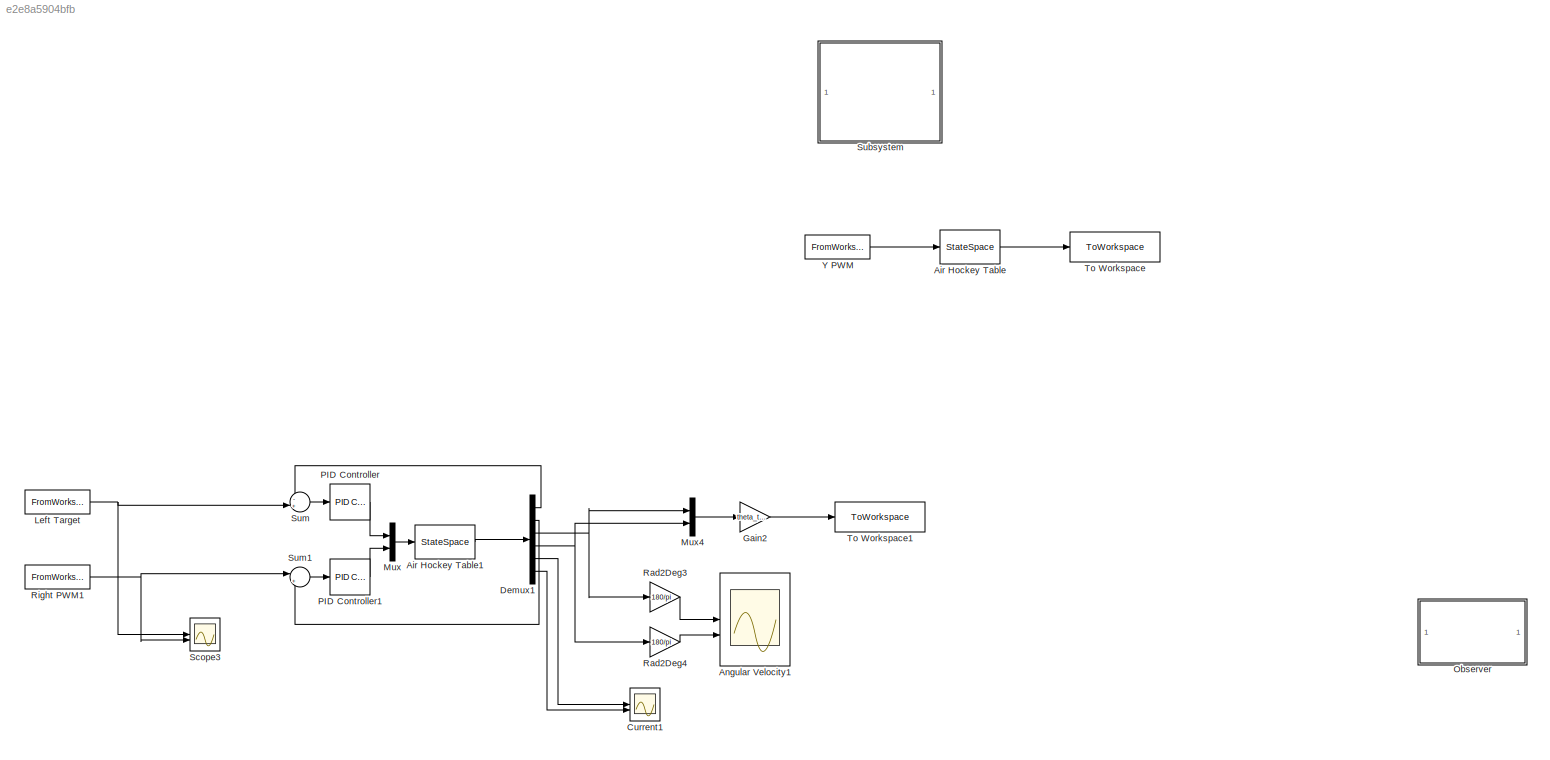
MODEL slx_e2e8a5904bfb
KIND model
CONFIG AbsTol = auto
CONFIG EnableMultiTasking = off
CONFIG FixedStep = auto
CONFIG MaxStep = auto
CONFIG MinStep = auto
CONFIG RelTol = 1e-3
CONFIG SampleTimeConstraint = Unconstrained
CONFIG SolverName = VariableStepAuto
CONFIG StartTime = 0.0
CONFIG StopTime = max(data.Time_ms_)/1000
BLOCK [StateSpace] Air Hockey Table
  A = A
  B = B
  C = C
  D = D
  InitialCondition = [data.Y_Accel_m_s2_(1)/C(1,3);data.Y_Velocity_m_s_(1)/C(1,3);data.y(1)/C(1,3)]
BLOCK [StateSpace] Air Hockey Table1
  A = A
  B = B
  C = [C; zeros(4,2) eye(4)]
  Commented = on
  D = [D; zeros(4,2)]
  InitialCondition = [0;0;0;0;0;0];
BLOCK [Scope] Angular Velocity1
  Commented = on
  Floating = off
  NumInputPorts = 2
  ScopeSpecificationString = Simulink.scopes.TimeScopeBlockCfg('CurrentConfiguration', extmgr.ConfigurationSet(extmgr.Configuration('Core','General UI',true),extmgr.Configuration('Core','Source UI',true),extmgr.Configuration('Sources','WiredSimulink',true,'DataLoggingVariableName','ScopeData3'),extmgr.Configuration('Visuals','Time Domain',true,'SerializedDisplays',{struct('MinYLimReal','-20043.26351','MaxYLimReal','23257.8804...<+1482ch>
BLOCK [Scope] Current1
  Commented = on
  Floating = off
  NumInputPorts = 2
  ScopeSpecificationString = Simulink.scopes.TimeScopeBlockCfg('CurrentConfiguration', extmgr.ConfigurationSet(extmgr.Configuration('Core','General UI',true),extmgr.Configuration('Core','Source UI',true),extmgr.Configuration('Sources','WiredSimulink',true,'DataLoggingVariableName','ScopeData4'),extmgr.Configuration('Visuals','Time Domain',true,'SerializedDisplays',{struct('MinYLimReal','-16079682721679488250104865973485040581...<+2027ch>
BLOCK [Demux] Demux1
  Commented = on
  Outputs = 6
BLOCK [Gain] Gain2
  Commented = on
  Gain = theta_to_xy
  Multiplication = Matrix(K*u)
BLOCK [FromWorkspace] Left Target
  Commented = on
  VariableName = [data.Time_ms_/1000, data.Left_Target_deg_]
BLOCK [Mux] Mux
  Commented = on
  DisplayOption = bar
  Inputs = 2
BLOCK [Mux] Mux4
  Commented = on
  DisplayOption = bar
  Inputs = 2
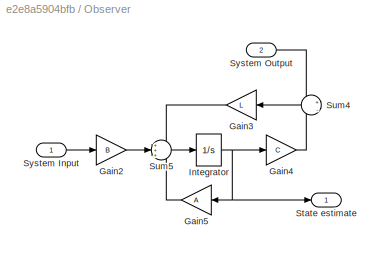
BLOCK [SubSystem] Observer
  Commented = on
  NameLocation = top
BLOCK [Gain] Observer/Gain2
  Gain = B
  Multiplication = Matrix(K*u)
BLOCK [Gain] Observer/Gain3
  Gain = L
  Multiplication = Matrix(K*u)
  NameLocation = top
BLOCK [Gain] Observer/Gain4
  Gain = C
  Multiplication = Matrix(K*u)
BLOCK [Gain] Observer/Gain5
  Gain = A
  Multiplication = Matrix(K*u)
  NameLocation = top
BLOCK [Integrator] Observer/Integrator
BLOCK [Outport] Observer/State estimate
BLOCK [Sum] Observer/Sum4
  Inputs = +|-
  NameLocation = top
BLOCK [Sum] Observer/Sum5
  Inputs = +++
BLOCK [Inport] Observer/System Input
BLOCK [Inport] Observer/System Output
  Port = 2
BLOCK [Reference] PID Controller  REF=slpidlib/PID Controller
  Commented = on
  LibrarySourceBlock = simulink/Continuous/PID Controller
  SourceBlock = slpidlib/PID Controller
  SourceType = PID 1dof
BLOCK [Reference] PID Controller1  REF=slpidlib/PID Controller
  Commented = on
  LibrarySourceBlock = simulink/Continuous/PID Controller
  SourceBlock = slpidlib/PID Controller
  SourceType = PID 1dof
BLOCK [Gain] Rad2Deg3
  Commented = on
  Gain = 180/pi
BLOCK [Gain] Rad2Deg4
  Commented = on
  Gain = 180/pi
BLOCK [FromWorkspace] Right PWM1
  Commented = on
  VariableName = [data.Time_ms_/1000, data.Left_Target_deg_]
BLOCK [Scope] Scope3
  Commented = on
  Floating = off
  NumInputPorts = 2
  ScopeSpecificationString = Simulink.scopes.TimeScopeBlockCfg('CurrentConfiguration', extmgr.ConfigurationSet(extmgr.Configuration('Core','General UI',true),extmgr.Configuration('Core','Source UI',true),extmgr.Configuration('Sources','WiredSimulink',true,'DataLoggingVariableName','ScopeData5'),extmgr.Configuration('Visuals','Time Domain',true,'SerializedDisplays',{struct('MinYLimReal','-179.60181','MaxYLimReal','1616.41625',...<+1494ch>
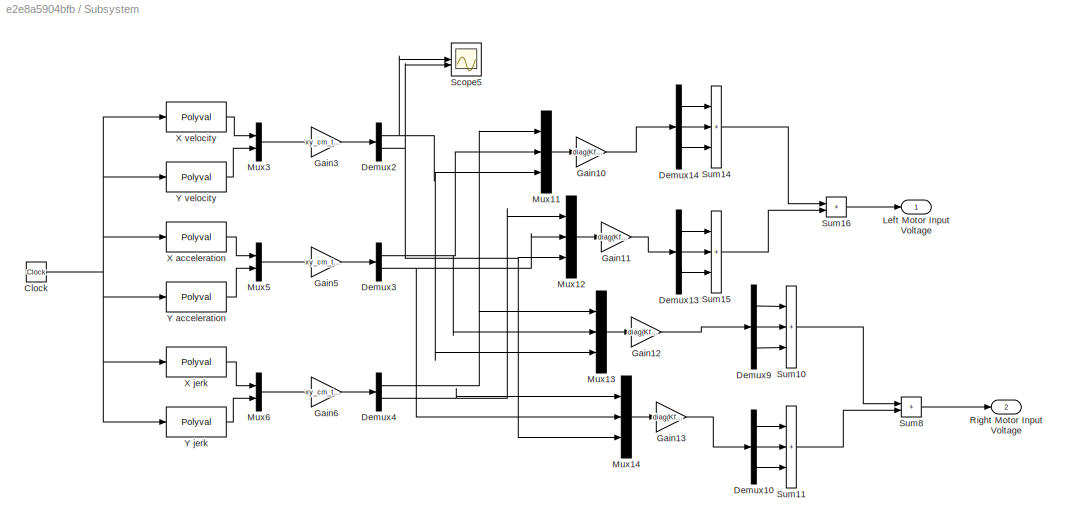
BLOCK [SubSystem] Subsystem
  Commented = on
BLOCK [Clock] Subsystem/Clock
BLOCK [Demux] Subsystem/Demux10
  Outputs = 3
BLOCK [Demux] Subsystem/Demux13
  Outputs = 3
BLOCK [Demux] Subsystem/Demux14
  Outputs = 3
BLOCK [Demux] Subsystem/Demux2
  Outputs = 2
BLOCK [Demux] Subsystem/Demux3
  Outputs = 2
BLOCK [Demux] Subsystem/Demux4
  Outputs = 2
BLOCK [Demux] Subsystem/Demux9
  Outputs = 3
BLOCK [Gain] Subsystem/Gain10
  Gain = diag(Kff{1,1})
  Multiplication = Matrix(K*u)
BLOCK [Gain] Subsystem/Gain11
  Gain = diag(Kff{1,2})
  Multiplication = Matrix(K*u)
BLOCK [Gain] Subsystem/Gain12
  Gain = diag(Kff{2,1})
  Multiplication = Matrix(K*u)
BLOCK [Gain] Subsystem/Gain13
  Gain = diag(Kff{2,2})
  Multiplication = Matrix(K*u)
BLOCK [Gain] Subsystem/Gain3
  Gain = xy_cm_to_theta_rad*100
  Multiplication = Matrix(K*u)
BLOCK [Gain] Subsystem/Gain5
  Gain = xy_cm_to_theta_rad*100
  Multiplication = Matrix(K*u)
BLOCK [Gain] Subsystem/Gain6
  Gain = xy_cm_to_theta_rad*100
  Multiplication = Matrix(K*u)
BLOCK [Outport] Subsystem/Left Motor Input Voltage
BLOCK [Mux] Subsystem/Mux11
  DisplayOption = bar
  Inputs = 3
BLOCK [Mux] Subsystem/Mux12
  DisplayOption = bar
  Inputs = 3
BLOCK [Mux] Subsystem/Mux13
  DisplayOption = bar
  Inputs = 3
BLOCK [Mux] Subsystem/Mux14
  DisplayOption = bar
  Inputs = 3
BLOCK [Mux] Subsystem/Mux3
  DisplayOption = bar
  Inputs = 2
BLOCK [Mux] Subsystem/Mux5
  DisplayOption = bar
  Inputs = 2
BLOCK [Mux] Subsystem/Mux6
  DisplayOption = bar
  Inputs = 2
BLOCK [Outport] Subsystem/Right Motor Input Voltage
  Port = 2
BLOCK [Scope] Subsystem/Scope5
  Floating = off
  NumInputPorts = 2
  ScopeSpecificationString = Simulink.scopes.TimeScopeBlockCfg('CurrentConfiguration', extmgr.ConfigurationSet(extmgr.Configuration('Core','General UI',true),extmgr.Configuration('Core','Source UI',true),extmgr.Configuration('Sources','WiredSimulink',true,'DataLoggingVariableName','ScopeData7'),extmgr.Configuration('Visuals','Time Domain',true,'SerializedDisplays',{struct('MinYLimReal','-2876.74758','MaxYLimReal','451.12578',...<+1434ch>
BLOCK [Sum] Subsystem/Sum10
  IconShape = rectangular
  Inputs = +++
BLOCK [Sum] Subsystem/Sum11
  IconShape = rectangular
  Inputs = +++
BLOCK [Sum] Subsystem/Sum14
  IconShape = rectangular
  Inputs = +++
BLOCK [Sum] Subsystem/Sum15
  IconShape = rectangular
  Inputs = +++
BLOCK [Sum] Subsystem/Sum16
  IconShape = rectangular
BLOCK [Sum] Subsystem/Sum8
  IconShape = rectangular
BLOCK [Polyval] Subsystem/X acceleration
  Coefs = [-795.16*5*4, 867.02*4*3, -336.04*3*2, 48.83*2*1]
BLOCK [Polyval] Subsystem/X jerk
  Coefs = [-795.16*5*4*3, 867.02*4*3*2, -336.04*3*2*1]
BLOCK [Polyval] Subsystem/X velocity
  Coefs = [-795.16*5, 867.02*4, -336.04*3, 48.83*2, 0]
BLOCK [Polyval] Subsystem/Y acceleration
  Coefs = [736.08*5*4, -772.37*4*3, 275.79*3*2, -29.77*2*1]
BLOCK [Polyval] Subsystem/Y jerk
  Coefs = [736.08*5*4*3, -772.37*4*3*2, 275.79*3*2*1]
BLOCK [Polyval] Subsystem/Y velocity
  Coefs = [736.08*5, -772.37*4, 275.79*3, -29.77*2, 0]
BLOCK [Sum] Sum
  Commented = on
  Inputs = -+|
BLOCK [Sum] Sum1
  Commented = on
  Inputs = |+-
BLOCK [ToWorkspace] To Workspace
  FixptAsFi = on
  MaxDataPoints = inf
  SampleTime = -1
  SaveFormat = Timeseries
  VariableName = simout
BLOCK [ToWorkspace] To Workspace1
  Commented = on
  FixptAsFi = on
  MaxDataPoints = inf
  SampleTime = -1
  SaveFormat = Timeseries
  VariableName = simout1
BLOCK [FromWorkspace] Y PWM
  VariableName = [data.Time_ms_/1000, data.Y_PWM*24]
LINE Air Hockey Table1:1 -> Demux1:1
LINE Air Hockey Table:1 -> To Workspace:1
LINE Demux1:1 -> Sum:1
LINE Demux1:2 -> Sum1:2
NET Demux1:3 -> Mux4:1, Rad2Deg3:1
NET Demux1:4 -> Mux4:2, Rad2Deg4:1
LINE Demux1:5 -> Current1:1
LINE Demux1:6 -> Current1:2
LINE Gain2:1 -> To Workspace1:1
NET Left Target:1 -> Scope3:1, Sum:2
LINE Mux4:1 -> Gain2:1
LINE Mux:1 -> Air Hockey Table1:1
LINE Observer/Gain2:1 -> Observer/Sum5:2
LINE Observer/Gain3:1 -> Observer/Sum5:1
LINE Observer/Gain4:1 -> Observer/Sum4:2
LINE Observer/Gain5:1 -> Observer/Sum5:3
NET Observer/Integrator:1 -> Observer/Gain4:1, Observer/Gain5:1, Observer/State estimate:1
LINE Observer/Sum4:1 -> Observer/Gain3:1
LINE Observer/Sum5:1 -> Observer/Integrator:1
LINE Observer/System Input:1 -> Observer/Gain2:1
LINE Observer/System Output:1 -> Observer/Sum4:1
LINE PID Controller1:1 -> Mux:2
LINE PID Controller:1 -> Mux:1
LINE Rad2Deg3:1 -> Angular Velocity1:1
LINE Rad2Deg4:1 -> Angular Velocity1:2
NET Right PWM1:1 -> Scope3:2, Sum1:1
NET Subsystem/Clock:1 -> Subsystem/X acceleration:1, Subsystem/X jerk:1, Subsystem/X velocity:1, Subsystem/Y acceleration:1, Subsystem/Y jerk:1, Subsystem/Y velocity:1
LINE Subsystem/Demux10:1 -> Subsystem/Sum11:1
LINE Subsystem/Demux10:2 -> Subsystem/Sum11:2
LINE Subsystem/Demux10:3 -> Subsystem/Sum11:3
LINE Subsystem/Demux13:1 -> Subsystem/Sum15:1
LINE Subsystem/Demux13:2 -> Subsystem/Sum15:2
LINE Subsystem/Demux13:3 -> Subsystem/Sum15:3
LINE Subsystem/Demux14:1 -> Subsystem/Sum14:1
LINE Subsystem/Demux14:2 -> Subsystem/Sum14:2
LINE Subsystem/Demux14:3 -> Subsystem/Sum14:3
NET Subsystem/Demux2:1 -> Subsystem/Mux11:3, Subsystem/Mux13:3, Subsystem/Scope5:1
NET Subsystem/Demux2:2 -> Subsystem/Mux12:3, Subsystem/Mux14:3, Subsystem/Scope5:2
NET Subsystem/Demux3:1 -> Subsystem/Mux11:2, Subsystem/Mux13:2
NET Subsystem/Demux3:2 -> Subsystem/Mux12:2, Subsystem/Mux14:2
NET Subsystem/Demux4:1 -> Subsystem/Mux11:1, Subsystem/Mux13:1
NET Subsystem/Demux4:2 -> Subsystem/Mux12:1, Subsystem/Mux14:1
LINE Subsystem/Demux9:1 -> Subsystem/Sum10:1
LINE Subsystem/Demux9:2 -> Subsystem/Sum10:2
LINE Subsystem/Demux9:3 -> Subsystem/Sum10:3
LINE Subsystem/Gain10:1 -> Subsystem/Demux14:1
LINE Subsystem/Gain11:1 -> Subsystem/Demux13:1
LINE Subsystem/Gain12:1 -> Subsystem/Demux9:1
LINE Subsystem/Gain13:1 -> Subsystem/Demux10:1
LINE Subsystem/Gain3:1 -> Subsystem/Demux2:1
LINE Subsystem/Gain5:1 -> Subsystem/Demux3:1
LINE Subsystem/Gain6:1 -> Subsystem/Demux4:1
LINE Subsystem/Mux11:1 -> Subsystem/Gain10:1
LINE Subsystem/Mux12:1 -> Subsystem/Gain11:1
LINE Subsystem/Mux13:1 -> Subsystem/Gain12:1
LINE Subsystem/Mux14:1 -> Subsystem/Gain13:1
LINE Subsystem/Mux3:1 -> Subsystem/Gain3:1
LINE Subsystem/Mux5:1 -> Subsystem/Gain5:1
LINE Subsystem/Mux6:1 -> Subsystem/Gain6:1
LINE Subsystem/Sum10:1 -> Subsystem/Sum8:1
LINE Subsystem/Sum11:1 -> Subsystem/Sum8:2
LINE Subsystem/Sum14:1 -> Subsystem/Sum16:1
LINE Subsystem/Sum15:1 -> Subsystem/Sum16:2
LINE Subsystem/Sum16:1 -> Subsystem/Left Motor Input Voltage:1
LINE Subsystem/Sum8:1 -> Subsystem/Right Motor Input Voltage:1
LINE Subsystem/X acceleration:1 -> Subsystem/Mux5:1
LINE Subsystem/X jerk:1 -> Subsystem/Mux6:1
LINE Subsystem/X velocity:1 -> Subsystem/Mux3:1
LINE Subsystem/Y acceleration:1 -> Subsystem/Mux5:2
LINE Subsystem/Y jerk:1 -> Subsystem/Mux6:2
LINE Subsystem/Y velocity:1 -> Subsystem/Mux3:2
LINE Sum1:1 -> PID Controller1:1
LINE Sum:1 -> PID Controller:1
LINE Y PWM:1 -> Air Hockey Table:1
note: NET lines group one-source signal fan-out (src -> all destinations, sorted); 1:1 wires keep LINE
